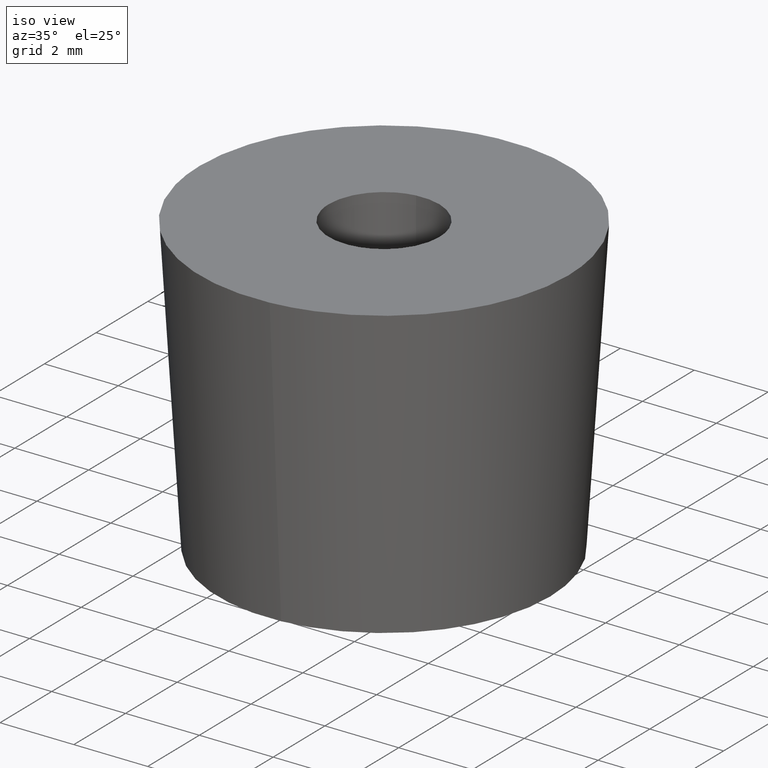
[diagram: clean part render]
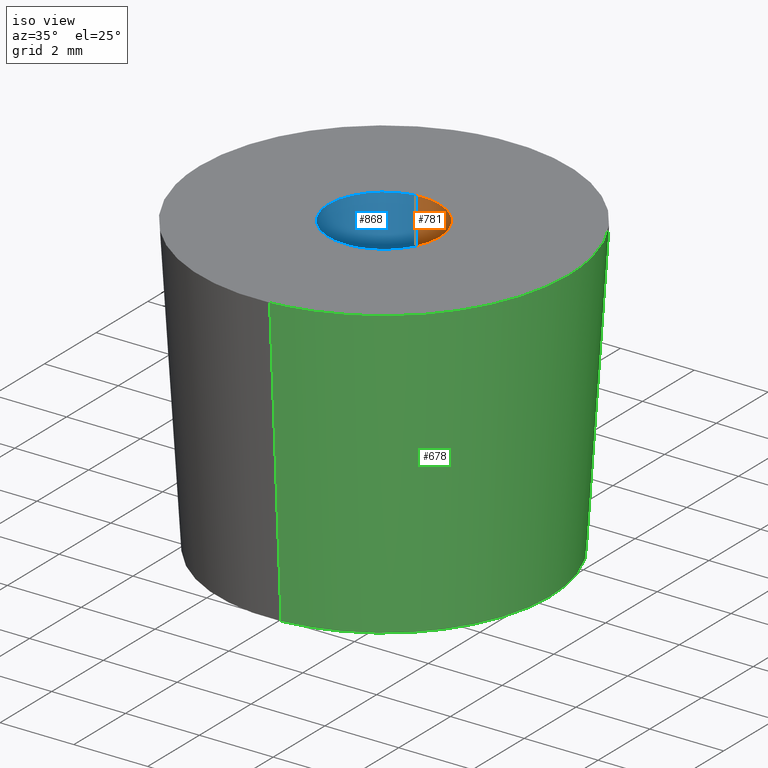
[diagram: same view with three faces highlighted in distinct colors, each labeled with its STEP entity id]
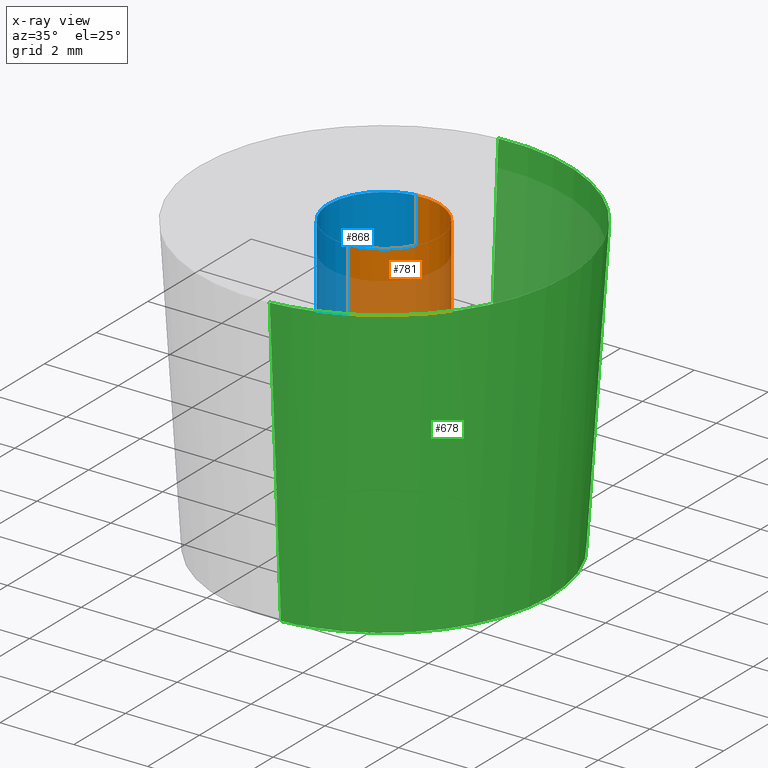
[diagram: x-ray of the same camera — body ghosted, the three highlighted faces saturated]
A machine part, iso view with three faces highlighted in distinct colors.
The next image is the same camera in x-ray (body ghosted, the three faces saturated) — at least one of them is partly hidden behind the body in this view.
Their STEP definitions:

[orange] entity #781 — the highlighted face is a freeform B-spline surface patch.
#679=CARTESIAN_POINT('',(-0.177051351985138,1.489514289545500,8.074999999999999));
#680=CARTESIAN_POINT('',(-0.134422092956966,1.494581423172908,8.074999999999999));
#681=CARTESIAN_POINT('',(-0.091572809302285,1.497202197632800,8.074999999999999));
#682=CARTESIAN_POINT('',(1.405629388330515,1.588775006935085,8.075000000000001));
#683=CARTESIAN_POINT('',(1.497202197632800,0.091572809302285,8.074999999999999));
#684=CARTESIAN_POINT('',(1.588775006935085,-1.405629388330515,8.075000000000001));
#685=CARTESIAN_POINT('',(0.091572809302285,-1.497202197632800,8.074999999999999));
#686=CARTESIAN_POINT('',(-0.177051351985138,1.489514289545500,4.923125000000000));
#687=CARTESIAN_POINT('',(-0.134422092956966,1.494581423172908,4.923124999999999));
#688=CARTESIAN_POINT('',(-0.091572809302285,1.497202197632800,4.923124999999999));
#689=CARTESIAN_POINT('',(1.405629388330515,1.588775006935085,4.923124999999998));
#690=CARTESIAN_POINT('',(1.497202197632800,0.091572809302285,4.923124999999999));
#691=CARTESIAN_POINT('',(1.588775006935085,-1.405629388330515,4.923124999999998));
#692=CARTESIAN_POINT('',(0.091572809302285,-1.497202197632800,4.923124999999999));
#700=(BOUNDED_SURFACE()B_SPLINE_SURFACE(2,1,((#679,#686),(#680,#687),(#681,#688),(#682,#689),(#683,#690),(#684,#691),(#685,#692)),.UNSPECIFIED.,.F.,.F.,.U.)B_SPLINE_SURFACE_WITH_KNOTS((3,2,2,3),(2,2),(3.078760800517997,3.141592653589793,4.712388980384690,6.283185307179586),(0.0,3.151875000000002),.UNSPECIFIED.)GEOMETRIC_REPRESENTATION_ITEM()RATIONAL_B_SPLINE_SURFACE(((0.977505800795127,0.977505800795127),(0.988284271247462,0.988284271247462),(1.0,1.0),(0.707106781186548,0.707106781186548),(1.0,1.0),(0.707106781186548,0.707106781186548),(1.0,1.0)))REPRESENTATION_ITEM('')SURFACE());
#701=CARTESIAN_POINT('',(-0.177049095385547,1.489514557773100,8.000000000000014));
#702=VERTEX_POINT('',#701);
#703=CARTESIAN_POINT('',(1.500000000000000,0.0,8.0));
#704=VERTEX_POINT('',#703);
#705=CARTESIAN_POINT('',(-0.177049095385547,1.489514557773101,8.000000000000014));
#706=CARTESIAN_POINT('',(-0.088835039250085,1.500000000000000,8.0));
#707=CARTESIAN_POINT('',(0.0,1.500000000000000,8.0));
#708=CARTESIAN_POINT('',(1.500000000000000,1.500000000000000,8.0));
#709=CARTESIAN_POINT('',(1.500000000000000,0.0,8.0));
#717=(BOUNDED_CURVE()B_SPLINE_CURVE(2,(#705,#706,#707,#708,#709),.UNSPECIFIED.,.F.,.U.)B_SPLINE_CURVE_WITH_KNOTS((3,2,3),(0.229562729553938,0.250000000000000,0.500000000000000),.UNSPECIFIED.)CURVE()GEOMETRIC_REPRESENTATION_ITEM()RATIONAL_B_SPLINE_CURVE((0.956027256034033,0.976056248301167,1.0,0.707106781186548,1.0))REPRESENTATION_ITEM(''));
#718=EDGE_CURVE('',#702,#704,#717,.T.);
#719=ORIENTED_EDGE('',*,*,#718,.F.);
#720=CARTESIAN_POINT('',(-0.177049122601509,1.489514554538154,5.0));
#721=VERTEX_POINT('',#720);
#722=CARTESIAN_POINT('',(-0.177049095385547,1.489514557773100,8.000000000000014));
#723=CARTESIAN_POINT('',(-0.177049122601509,1.489514554538154,5.0));
#724=QUASI_UNIFORM_CURVE('',1,(#722,#723),.UNSPECIFIED.,.F.,.U.);
#725=EDGE_CURVE('',#702,#721,#724,.T.);
#726=ORIENTED_EDGE('',*,*,#725,.T.);
#727=CARTESIAN_POINT('',(1.500000000000000,0.0,5.0));
#728=VERTEX_POINT('',#727);
#729=CARTESIAN_POINT('',(-0.177049122601509,1.489514554538154,5.0));
#730=CARTESIAN_POINT('',(-0.088835053001922,1.500000000000000,5.0));
#731=CARTESIAN_POINT('',(0.0,1.500000000000000,5.0));
#732=CARTESIAN_POINT('',(1.500000000000000,1.500000000000000,5.000000000000001));
#733=CARTESIAN_POINT('',(1.500000000000000,0.0,5.0));
#741=(BOUNDED_CURVE()B_SPLINE_CURVE(2,(#729,#730,#731,#732,#733),.UNSPECIFIED.,.F.,.U.)B_SPLINE_CURVE_WITH_KNOTS((3,2,3),(0.229562726465960,0.250000000000000,0.500000000000000),.UNSPECIFIED.)CURVE()GEOMETRIC_REPRESENTATION_ITEM()RATIONAL_B_SPLINE_CURVE((0.956027249981456,0.976056244683376,1.0,0.707106781186548,1.0))REPRESENTATION_ITEM(''));
#742=EDGE_CURVE('',#721,#728,#741,.T.);
#743=ORIENTED_EDGE('',*,*,#742,.T.);
#744=CARTESIAN_POINT('',(0.091570935345200,-1.497202312246571,5.0));
#745=VERTEX_POINT('',#744);
#746=CARTESIAN_POINT('',(1.500000000000000,0.0,5.0));
#747=CARTESIAN_POINT('',(1.500000000000000,-1.411060869796808,4.999999999999999));
#748=CARTESIAN_POINT('',(0.091570935345200,-1.497202312246571,5.0));
#756=(BOUNDED_CURVE()B_SPLINE_CURVE(2,(#746,#747,#748),.UNSPECIFIED.,.F.,.U.)B_SPLINE_CURVE_WITH_KNOTS((3,3),(0.500000000000000,0.739333178208343),.UNSPECIFIED.)CURVE()GEOMETRIC_REPRESENTATION_ITEM()RATIONAL_B_SPLINE_CURVE((1.0,0.719603740262819,0.976072504530692))REPRESENTATION_ITEM(''));
#757=EDGE_CURVE('',#728,#745,#756,.T.);
#758=ORIENTED_EDGE('',*,*,#757,.T.);
#759=CARTESIAN_POINT('',(0.091570912522021,-1.497202313642439,7.999999999999989));
#760=VERTEX_POINT('',#759);
#761=CARTESIAN_POINT('',(0.091570912522021,-1.497202313642439,7.999999999999989));
#762=CARTESIAN_POINT('',(0.091570935345200,-1.497202312246571,5.0));
#763=QUASI_UNIFORM_CURVE('',1,(#761,#762),.UNSPECIFIED.,.F.,.U.);
#764=EDGE_CURVE('',#760,#745,#763,.T.);
#765=ORIENTED_EDGE('',*,*,#764,.F.);
#766=CARTESIAN_POINT('',(1.500000000000000,0.0,8.0));
#767=CARTESIAN_POINT('',(1.500000000000000,-1.411060891347048,8.0));
#768=CARTESIAN_POINT('',(0.091570912522021,-1.497202313642440,7.999999999999989));
#776=(BOUNDED_CURVE()B_SPLINE_CURVE(2,(#766,#767,#768),.UNSPECIFIED.,.F.,.U.)B_SPLINE_CURVE_WITH_KNOTS((3,3),(0.500000000000000,0.739333180838628),.UNSPECIFIED.)CURVE()GEOMETRIC_REPRESENTATION_ITEM()RATIONAL_B_SPLINE_CURVE((1.0,0.719603737181249,0.976072510167902))REPRESENTATION_ITEM(''));
#777=EDGE_CURVE('',#704,#760,#776,.T.);
#778=ORIENTED_EDGE('',*,*,#777,.F.);
#779=EDGE_LOOP('',(#719,#726,#743,#758,#765,#778));
#780=FACE_OUTER_BOUND('',#779,.T.);
#781=ADVANCED_FACE('',(#780),#700,.F.);

[blue] entity #868 — the highlighted face is a freeform B-spline surface patch.
#701=CARTESIAN_POINT('',(-0.177049095385547,1.489514557773100,8.000000000000014));
#702=VERTEX_POINT('',#701);
#720=CARTESIAN_POINT('',(-0.177049122601509,1.489514554538154,5.0));
#721=VERTEX_POINT('',#720);
#722=CARTESIAN_POINT('',(-0.177049095385547,1.489514557773100,8.000000000000014));
#723=CARTESIAN_POINT('',(-0.177049122601509,1.489514554538154,5.0));
#724=QUASI_UNIFORM_CURVE('',1,(#722,#723),.UNSPECIFIED.,.F.,.U.);
#725=EDGE_CURVE('',#702,#721,#724,.T.);
#744=CARTESIAN_POINT('',(0.091570935345200,-1.497202312246571,5.0));
#745=VERTEX_POINT('',#744);
#759=CARTESIAN_POINT('',(0.091570912522021,-1.497202313642439,7.999999999999989));
#760=VERTEX_POINT('',#759);
#761=CARTESIAN_POINT('',(0.091570912522021,-1.497202313642439,7.999999999999989));
#762=CARTESIAN_POINT('',(0.091570935345200,-1.497202312246571,5.0));
#763=QUASI_UNIFORM_CURVE('',1,(#761,#762),.UNSPECIFIED.,.F.,.U.);
#764=EDGE_CURVE('',#760,#745,#763,.T.);
#782=CARTESIAN_POINT('',(0.112202681040130,-1.495940420623945,8.074999999999998));
#783=CARTESIAN_POINT('',(0.101917265286339,-1.496569503600784,8.074999999999998));
#784=CARTESIAN_POINT('',(-1.405629388330515,-1.588775006935085,8.075000000000001));
#785=CARTESIAN_POINT('',(-1.497202197632800,-0.091572809302285,8.074999999999999));
#786=CARTESIAN_POINT('',(-1.583679295098791,1.322315236259252,8.075000000000001));
#787=CARTESIAN_POINT('',(-0.166519347114734,1.490766177972826,8.075000000000001));
#788=CARTESIAN_POINT('',(-0.156043946740954,1.492011338097695,8.074999999999999));
#789=CARTESIAN_POINT('',(0.112202681040130,-1.495940420623945,4.923124999999998));
#790=CARTESIAN_POINT('',(0.101917265286339,-1.496569503600784,4.923124999999998));
#791=CARTESIAN_POINT('',(-1.405629388330515,-1.588775006935085,4.923124999999998));
#792=CARTESIAN_POINT('',(-1.497202197632800,-0.091572809302285,4.923124999999999));
#793=CARTESIAN_POINT('',(-1.583679295098791,1.322315236259252,4.923124999999998));
#794=CARTESIAN_POINT('',(-0.166519347114734,1.490766177972826,4.923125000000000));
#795=CARTESIAN_POINT('',(-0.156043946740954,1.492011338097695,4.923125000000000));
#803=(BOUNDED_SURFACE()B_SPLINE_SURFACE(2,1,((#782,#789),(#783,#790),(#784,#791),(#785,#792),(#786,#793),(#787,#794),(#788,#795)),.UNSPECIFIED.,.F.,.F.,.U.)B_SPLINE_SURFACE_WITH_KNOTS((3,1,2,1,3),(2,2),(0.0,0.024353559358504,2.509634933597074,4.895505052866100,4.919863414297432),(0.0,3.151875000000001),.UNSPECIFIED.)GEOMETRIC_REPRESENTATION_ITEM()RATIONAL_B_SPLINE_SURFACE(((1.005740188989476,1.005740188989476),(1.002870094494738,1.002870094494738),(0.707106781186548,0.707106781186548),(1.0,1.0),(0.718822509939086,0.718822509939086),(0.980146808385619,0.980146808385619),(0.982787815976111,0.982787815976111)))REPRESENTATION_ITEM('')SURFACE());
#804=CARTESIAN_POINT('',(-1.500000000000000,0.0,8.0));
#805=VERTEX_POINT('',#804);
#806=CARTESIAN_POINT('',(-1.500000000000000,0.0,8.0));
#807=CARTESIAN_POINT('',(-1.500000000000000,1.332263821500285,8.0));
#808=CARTESIAN_POINT('',(-0.177049095385547,1.489514557773101,8.000000000000014));
#816=(BOUNDED_CURVE()B_SPLINE_CURVE(2,(#806,#807,#808),.UNSPECIFIED.,.F.,.U.)B_SPLINE_CURVE_WITH_KNOTS((3,3),(0.0,0.229562729553938),.UNSPECIFIED.)CURVE()GEOMETRIC_REPRESENTATION_ITEM()RATIONAL_B_SPLINE_CURVE((1.0,0.731050532885381,0.956027256034033))REPRESENTATION_ITEM(''));
#817=EDGE_CURVE('',#805,#702,#816,.T.);
#818=ORIENTED_EDGE('',*,*,#817,.F.);
#819=CARTESIAN_POINT('',(0.091570912522021,-1.497202313642440,7.999999999999989));
#820=CARTESIAN_POINT('',(0.045828193898650,-1.500000000000000,8.0));
#821=CARTESIAN_POINT('',(0.0,-1.500000000000000,8.0));
#822=CARTESIAN_POINT('',(-1.500000000000000,-1.500000000000000,8.0));
#823=CARTESIAN_POINT('',(-1.500000000000000,0.0,8.0));
#831=(BOUNDED_CURVE()B_SPLINE_CURVE(2,(#819,#820,#821,#822,#823),.UNSPECIFIED.,.F.,.U.)B_SPLINE_CURVE_WITH_KNOTS((3,2,3),(0.739333180838628,0.750000000000000,1.0),.UNSPECIFIED.)CURVE()GEOMETRIC_REPRESENTATION_ITEM()RATIONAL_B_SPLINE_CURVE((0.976072510167902,0.987503044005299,1.0,0.707106781186548,1.0))REPRESENTATION_ITEM(''));
#832=EDGE_CURVE('',#760,#805,#831,.T.);
#833=ORIENTED_EDGE('',*,*,#832,.F.);
#834=ORIENTED_EDGE('',*,*,#764,.T.);
#835=CARTESIAN_POINT('',(-1.500000000000000,0.0,5.0));
#836=VERTEX_POINT('',#835);
#837=CARTESIAN_POINT('',(0.091570935345200,-1.497202312246571,5.0));
#838=CARTESIAN_POINT('',(0.045828205342234,-1.500000000000000,5.000000000000001));
#839=CARTESIAN_POINT('',(0.0,-1.500000000000000,5.0));
#840=CARTESIAN_POINT('',(-1.500000000000000,-1.500000000000000,5.000000000000001));
#841=CARTESIAN_POINT('',(-1.500000000000000,0.0,5.0));
#849=(BOUNDED_CURVE()B_SPLINE_CURVE(2,(#837,#838,#839,#840,#841),.UNSPECIFIED.,.F.,.U.)B_SPLINE_CURVE_WITH_KNOTS((3,2,3),(0.739333178208343,0.750000000000000,1.0),.UNSPECIFIED.)CURVE()GEOMETRIC_REPRESENTATION_ITEM()RATIONAL_B_SPLINE_CURVE((0.976072504530692,0.987503040923729,1.0,0.707106781186548,1.0))REPRESENTATION_ITEM(''));
#850=EDGE_CURVE('',#745,#836,#849,.T.);
#851=ORIENTED_EDGE('',*,*,#850,.T.);
#852=CARTESIAN_POINT('',(-1.500000000000000,0.0,5.0));
#853=CARTESIAN_POINT('',(-1.500000000000000,1.332263796986205,5.0));
#854=CARTESIAN_POINT('',(-0.177049122601509,1.489514554538154,5.0));
#862=(BOUNDED_CURVE()B_SPLINE_CURVE(2,(#852,#853,#854),.UNSPECIFIED.,.F.,.U.)B_SPLINE_CURVE_WITH_KNOTS((3,3),(0.0,0.229562726465960),.UNSPECIFIED.)CURVE()GEOMETRIC_REPRESENTATION_ITEM()RATIONAL_B_SPLINE_CURVE((1.0,0.731050536503171,0.956027249981456))REPRESENTATION_ITEM(''));
#863=EDGE_CURVE('',#836,#721,#862,.T.);
#864=ORIENTED_EDGE('',*,*,#863,.T.);
#865=ORIENTED_EDGE('',*,*,#725,.F.);
#866=EDGE_LOOP('',(#818,#833,#834,#851,#864,#865));
#867=FACE_OUTER_BOUND('',#866,.T.);
#868=ADVANCED_FACE('',(#867),#803,.F.);

[green] entity #678 — the highlighted face is a freeform B-spline surface patch.
#517=CARTESIAN_POINT('',(-0.353062357360180,4.486128245514117,-0.000000598405103));
#518=VERTEX_POINT('',#517);
#532=CARTESIAN_POINT('',(0.353062357360179,-4.486128245514117,-0.000000598405103));
#533=VERTEX_POINT('',#532);
#549=CARTESIAN_POINT('',(0.392292609547285,-4.984586864029133,7.999999514504765));
#550=VERTEX_POINT('',#549);
#551=CARTESIAN_POINT('',(0.353062357360179,-4.486128245514117,-0.000000598405103));
#552=CARTESIAN_POINT('',(0.392292609547285,-4.984586864029133,7.999999514504765));
#553=QUASI_UNIFORM_CURVE('',1,(#551,#552),.UNSPECIFIED.,.F.,.U.);
#554=EDGE_CURVE('',#533,#550,#553,.T.);
#573=CARTESIAN_POINT('',(-0.392292609547286,4.984586864029133,7.999999514504763));
#574=VERTEX_POINT('',#573);
#588=CARTESIAN_POINT('',(-0.353062357360180,4.486128245514117,-0.000000598405103));
#589=CARTESIAN_POINT('',(-0.392292609547286,4.984586864029133,7.999999514504763));
#590=QUASI_UNIFORM_CURVE('',1,(#588,#589),.UNSPECIFIED.,.F.,.U.);
#591=EDGE_CURVE('',#518,#574,#590,.T.);
#596=CARTESIAN_POINT('',(0.352085192078707,-4.473666535127410,-0.200000000000000));
#597=CARTESIAN_POINT('',(4.825751727206116,-4.121581343048703,-0.200000000000000));
#598=CARTESIAN_POINT('',(4.473666535127410,0.352085192078707,-0.200000000000000));
#599=CARTESIAN_POINT('',(4.121581343048703,4.825751727206116,-0.200000000000000));
#600=CARTESIAN_POINT('',(-0.352085192078707,4.473666535127410,-0.200000000000000));
#601=CARTESIAN_POINT('',(0.393300735803241,-4.997359672004095,8.205000000000000));
#602=CARTESIAN_POINT('',(5.390660407807336,-4.604058936200854,8.205000000000000));
#603=CARTESIAN_POINT('',(4.997359672004095,0.393300735803241,8.205000000000000));
#604=CARTESIAN_POINT('',(4.604058936200854,5.390660407807336,8.205000000000000));
#605=CARTESIAN_POINT('',(-0.393300735803241,4.997359672004095,8.205000000000000));
#613=(BOUNDED_SURFACE()B_SPLINE_SURFACE(2,1,((#596,#601),(#597,#602),(#598,#603),(#599,#604),(#600,#605)),.UNSPECIFIED.,.F.,.F.,.U.)B_SPLINE_SURFACE_WITH_KNOTS((3,2,3),(2,2),(0.0,8.305499692533521,16.610999385067039),(0.0,8.421400015594573),.UNSPECIFIED.)GEOMETRIC_REPRESENTATION_ITEM()RATIONAL_B_SPLINE_SURFACE(((1.0,1.0),(0.707106781186548,0.707106781186548),(1.0,1.0),(0.707106781186548,0.707106781186548),(1.0,1.0)))REPRESENTATION_ITEM('')SURFACE());
#614=CARTESIAN_POINT('',(4.500000000000000,0.0,0.0));
#615=VERTEX_POINT('',#614);
#616=CARTESIAN_POINT('',(-0.353062357360180,4.486128245514117,-0.000000598405103));
#617=CARTESIAN_POINT('',(-0.176803688009538,4.500000000000000,0.0));
#618=CARTESIAN_POINT('',(0.0,4.500000000000000,0.0));
#619=CARTESIAN_POINT('',(4.500000000000000,4.500000000000000,0.0));
#620=CARTESIAN_POINT('',(4.500000000000000,0.0,0.0));
#628=(BOUNDED_CURVE()B_SPLINE_CURVE(2,(#616,#617,#618,#619,#620),.UNSPECIFIED.,.F.,.U.)B_SPLINE_CURVE_WITH_KNOTS((3,2,3),(0.236331437068440,0.250000000000000,0.500000000000000),.UNSPECIFIED.)CURVE()GEOMETRIC_REPRESENTATION_ITEM()RATIONAL_B_SPLINE_CURVE((0.969723640902832,0.983986282425685,1.0,0.707106781186547,1.0))REPRESENTATION_ITEM(''));
#629=EDGE_CURVE('',#518,#615,#628,.T.);
#630=ORIENTED_EDGE('',*,*,#629,.F.);
#631=ORIENTED_EDGE('',*,*,#591,.T.);
#632=CARTESIAN_POINT('',(5.0,0.0,8.0));
#633=VERTEX_POINT('',#632);
#634=CARTESIAN_POINT('',(-0.392292609547286,4.984586864029133,7.999999514504763));
#635=CARTESIAN_POINT('',(-0.196449095031061,5.0,8.0));
#636=CARTESIAN_POINT('',(0.0,5.0,8.0));
#637=CARTESIAN_POINT('',(5.000000000000001,5.000000000000001,8.0));
#638=CARTESIAN_POINT('',(5.0,0.0,8.0));
#646=(BOUNDED_CURVE()B_SPLINE_CURVE(2,(#634,#635,#636,#637,#638),.UNSPECIFIED.,.F.,.U.)B_SPLINE_CURVE_WITH_KNOTS((3,2,3),(0.236331399221592,0.250000000000000,0.500000000000000),.UNSPECIFIED.)CURVE()GEOMETRIC_REPRESENTATION_ITEM()RATIONAL_B_SPLINE_CURVE((0.969723561919263,0.983986238085344,1.0,0.707106781186548,1.0))REPRESENTATION_ITEM(''));
#647=EDGE_CURVE('',#574,#633,#646,.T.);
#648=ORIENTED_EDGE('',*,*,#647,.T.);
#649=CARTESIAN_POINT('',(5.0,0.0,8.0));
#650=CARTESIAN_POINT('',(4.999999999999999,-4.621955124665981,8.0));
#651=CARTESIAN_POINT('',(0.392292609547285,-4.984586864029133,7.999999514504765));
#659=(BOUNDED_CURVE()B_SPLINE_CURVE(2,(#649,#650,#651),.UNSPECIFIED.,.F.,.U.)B_SPLINE_CURVE_WITH_KNOTS((3,3),(0.500000000000000,0.736331399221592),.UNSPECIFIED.)CURVE()GEOMETRIC_REPRESENTATION_ITEM()RATIONAL_B_SPLINE_CURVE((1.0,0.723120543101204,0.969723561919263))REPRESENTATION_ITEM(''));
#660=EDGE_CURVE('',#633,#550,#659,.T.);
#661=ORIENTED_EDGE('',*,*,#660,.T.);
#662=ORIENTED_EDGE('',*,*,#554,.F.);
#663=CARTESIAN_POINT('',(4.500000000000000,0.0,0.0));
#664=CARTESIAN_POINT('',(4.500000000000000,-4.159760533424683,0.0));
#665=CARTESIAN_POINT('',(0.353062357360179,-4.486128245514117,-0.000000598405103));
#673=(BOUNDED_CURVE()B_SPLINE_CURVE(2,(#663,#664,#665),.UNSPECIFIED.,.F.,.U.)B_SPLINE_CURVE_WITH_KNOTS((3,3),(0.500000000000000,0.736331437068440),.UNSPECIFIED.)CURVE()GEOMETRIC_REPRESENTATION_ITEM()RATIONAL_B_SPLINE_CURVE((1.0,0.723120498760862,0.969723640902832))REPRESENTATION_ITEM(''));
#674=EDGE_CURVE('',#615,#533,#673,.T.);
#675=ORIENTED_EDGE('',*,*,#674,.F.);
#676=EDGE_LOOP('',(#630,#631,#648,#661,#662,#675));
#677=FACE_OUTER_BOUND('',#676,.T.);
#678=ADVANCED_FACE('',(#677),#613,.T.);